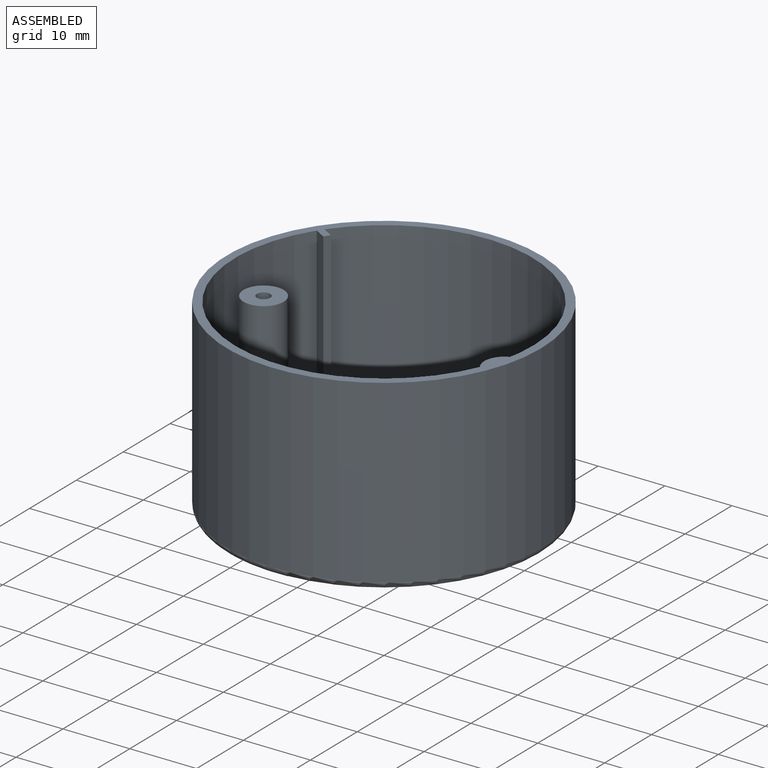
[diagram: assembled view]
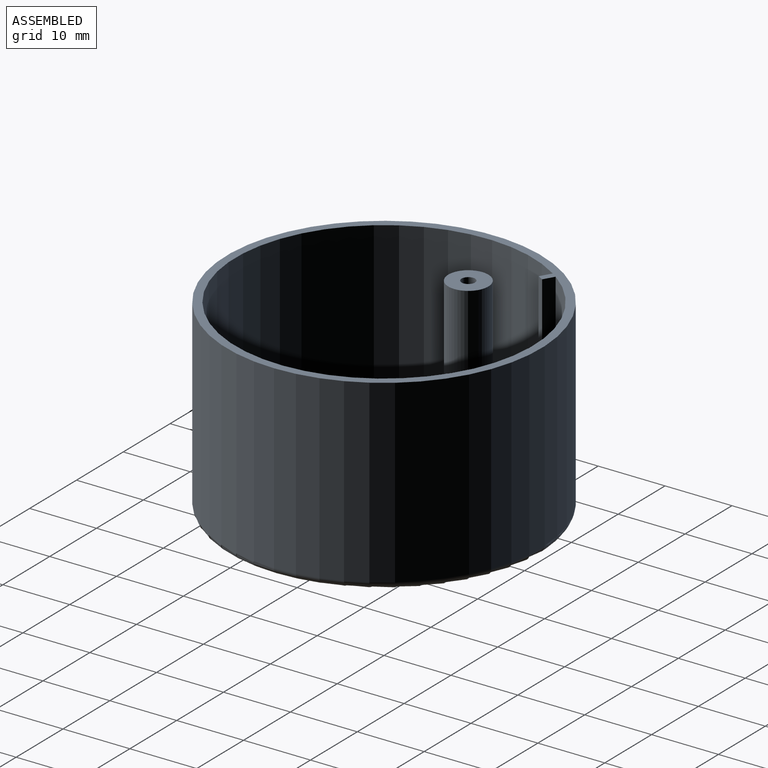
[diagram: assembled view, second angle]
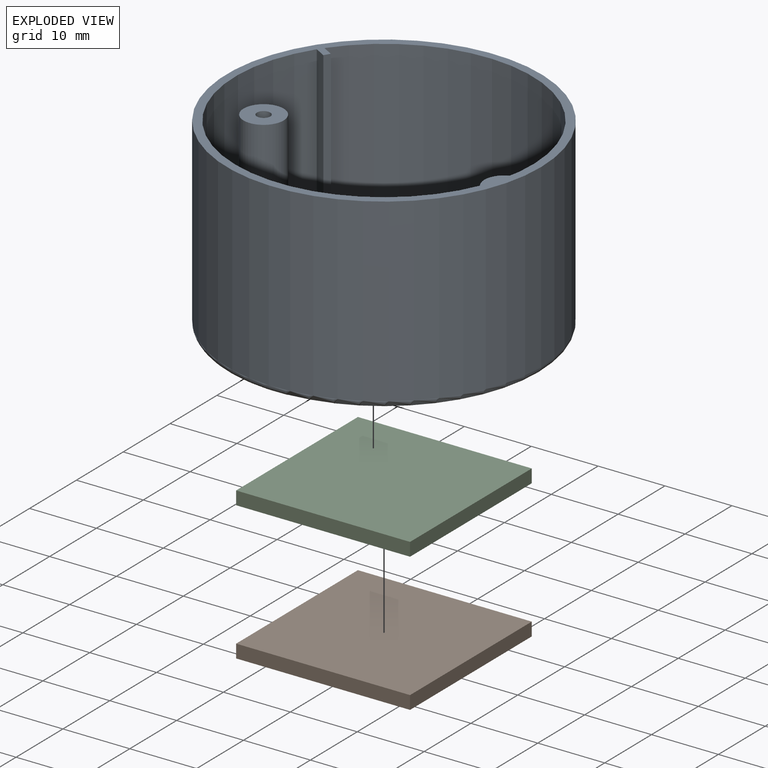
[diagram: exploded view]
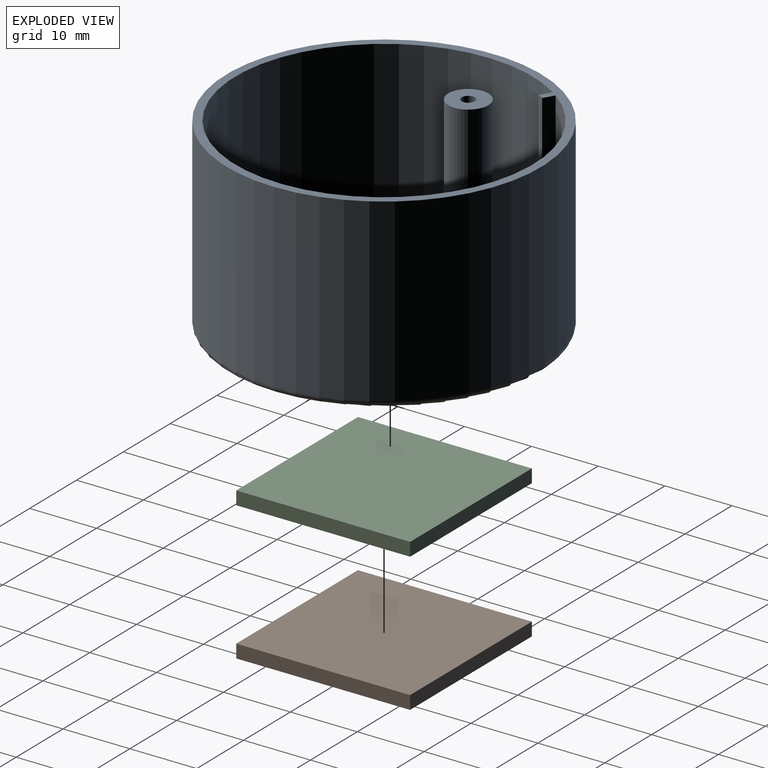
[diagram: exploded view, second angle]
ASSEMBLY  parts=3 mates=2
PART A: 21 faces, bbox 50.9x50.9x28 mm
  f0: plane 44.5x44.5mm, normal (0,0,1), area 820.9mm2, adj f4,f5,f6,f7,f9,f12,f16,f17
  f1: plane 45x45mm, normal (0,0,-1), area 914.4mm2, adj f16,f17,f18,f19,f20
  f2: plane 47x47mm, normal (0,0,1), area 181.5mm2, adj f3,f4,f5,f6,f7
  f3: cylinder r=23.5mm len=47mm, axis (0,0,-1), area 3986.7mm2, adj f2,f20
  f4: plane 26x1.58mm, normal (0.5,0.87,0), area 47.5mm2, adj f0,f2,f5,f7
  f5: plane 26x0.87mm, normal (0.87,-0.5,0), area 26mm2, adj f0,f2,f4,f6
  f6: plane 26x1.65mm, normal (-0.5,-0.87,0), area 49.6mm2, adj f0,f2,f5,f7
  f7: cylinder r=22.25mm len=44.5mm, axis (0,0,1), area 3608.7mm2, adj f0,f2,f4,f6
  f8: cylinder r=1mm len=22mm, axis (0,0,-1), area 138.2mm2, adj f10,f11
  f9: cylinder r=3mm len=22mm, axis (0,0,-1), area 414.7mm2, adj f0,f10
  f10: plane 6x6mm, normal (0,0,1), area 25.1mm2, adj f8,f9
  f11: plane 2x2mm, normal (0,0,1), area 3.1mm2, adj f8
  f12: cylinder r=3mm len=22mm, axis (0,0,-1), area 414.7mm2, adj f0,f14
  f13: cylinder r=1mm len=22mm, axis (0,0,-1), area 138.2mm2, adj f14,f15
  f14: plane 6x6mm, normal (0,0,1), area 25.1mm2, adj f12,f13
  f15: plane 2x2mm, normal (0,0,1), area 3.1mm2, adj f13
  f16: plane 26x2mm, normal (0,1,0), area 52mm2, adj f0,f1,f17,f19
  f17: plane 26x2mm, normal (-1,0,0), area 52mm2, adj f0,f1,f16,f18
  f18: plane 26x2mm, normal (0,-1,0), area 52mm2, adj f0,f1,f17,f19
  f19: plane 26x2mm, normal (1,0,0), area 52mm2, adj f0,f1,f16,f18
  f20: torus R=22.5mm, axis (0,0,1), area 228.3mm2, adj f1,f3
PART B: 6 faces, bbox 26x2x26 mm
  f0: plane 26x2mm, normal (0,0,-1), area 52mm2, adj f1,f3,f4,f5
  f1: plane 26x2mm, normal (1,0,0), area 52mm2, adj f0,f2,f4,f5
  f2: plane 26x2mm, normal (0,0,1), area 52mm2, adj f1,f3,f4,f5
  f3: plane 26x2mm, normal (-1,0,0), area 52mm2, adj f0,f2,f4,f5
  f4: plane 26x26mm, normal (0,-1,0), area 676mm2, adj f0,f1,f2,f3
  f5: plane 26x26mm, normal (0,1,0), area 676mm2, adj f0,f1,f2,f3
PART C: same geometry as B
PLACE A at identity fixed
PLACE B rot(axis=(1,0,0),90deg) t=(0,0,2)mm
PLACE C rot(axis=(1,0,0),90deg) t=(0,0,4)mm
MATE fastened B.f4 <-> A.f1  axis (0,0,-1) through (0,13,0)mm
MATE fastened C.f4 <-> B.f5  axis (0,0,-1) through (0,0,2)mm
